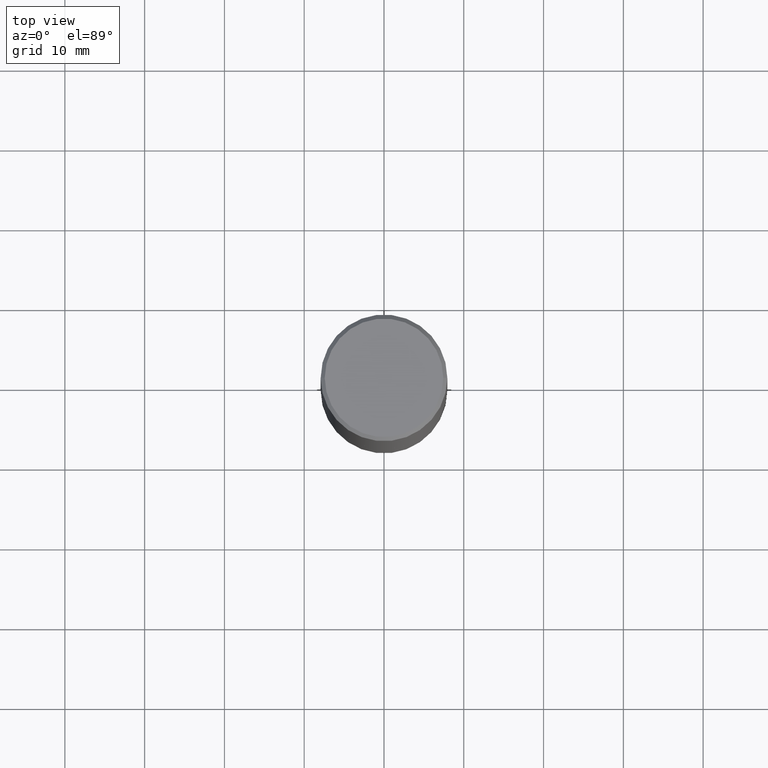
[diagram: clean part render]
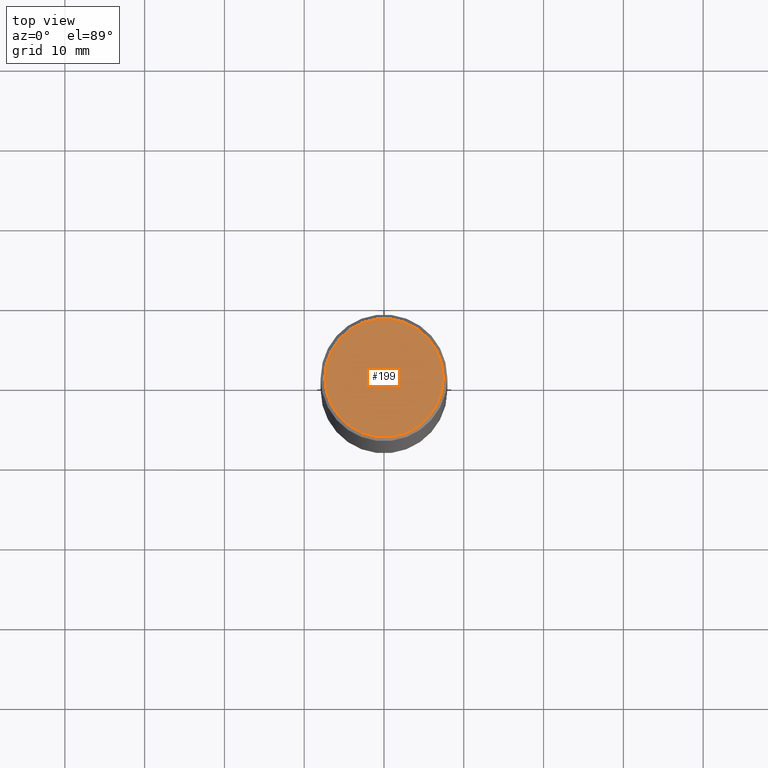
[diagram: same view with one face highlighted and labeled with its STEP entity id]
A machine part, top view. The second image highlights one B-rep face of the part: STEP entity #199.
In plain terms, the highlighted planar face has unit normal (0, -0, -1).
Its self-contained STEP definition (entity closure, byte-faithful):
#29 = PLANE ( 'NONE',  #419 ) ;
#84 = CARTESIAN_POINT ( 'NONE',  ( 2.042516583223231356E-15, 0.2924999999999998157, -1.019124035366569212E-15 ) ) ;
#107 = CARTESIAN_POINT ( 'NONE',  ( 0.2924999999999998157, -2.110215457714318748E-15, 4.268512490114932791E-18 ) ) ;
#108 = VERTEX_POINT ( 'NONE', #294 ) ;
#159 = DIRECTION ( 'NONE',  ( 1.000000000000000000, -6.982962677686266711E-15, 4.876067333457692840E-29 ) ) ;
#171 = DIRECTION ( 'NONE',  ( -2.445468806185136597E-29, 3.491481338843145583E-15, 1.000000000000000000 ) ) ;
#197 = CARTESIAN_POINT ( 'NONE',  ( -1.043851414335219820E-46, 1.490343170380447200E-32, 4.268512490100411279E-18 ) ) ;
#199 = ADVANCED_FACE ( 'NONE', ( #397 ), #29, .F. ) ;
#230 = EDGE_CURVE ( 'NONE', #108, #239, #387, .T. ) ;
#233 = DIRECTION ( 'NONE',  ( 1.000000000000000000, -6.982962677686266711E-15, 4.876067333457692840E-29 ) ) ;
#239 = VERTEX_POINT ( 'NONE', #107 ) ;
#261 = CIRCLE ( 'NONE', #298, 0.2924999999999998157 ) ;
#264 = DIRECTION ( 'NONE',  ( -1.000000000000000000, 6.982962677686265922E-15, -4.876176775795935793E-29 ) ) ;
#294 = CARTESIAN_POINT ( 'NONE',  ( -0.2924999999999998157, 2.077431396611662611E-15, 4.268512490086005323E-18 ) ) ;
#298 = AXIS2_PLACEMENT_3D ( 'NONE', #372, #171, #233 ) ;
#300 = DIRECTION ( 'NONE',  ( 2.438088387897960049E-29, -3.491481338843145188E-15, -1.000000000000000000 ) ) ;
#302 = EDGE_CURVE ( 'NONE', #239, #108, #261, .T. ) ;
#317 = ORIENTED_EDGE ( 'NONE', *, *, #230, .T. ) ;
#334 = DIRECTION ( 'NONE',  ( -2.445468806185136597E-29, 3.491481338843145583E-15, 1.000000000000000000 ) ) ;
#362 = EDGE_LOOP ( 'NONE', ( #317, #411 ) ) ;
#372 = CARTESIAN_POINT ( 'NONE',  ( -1.043851414335219820E-46, 1.490343170380447200E-32, 4.268512490100411279E-18 ) ) ;
#387 = CIRCLE ( 'NONE', #431, 0.2924999999999998157 ) ;
#397 = FACE_OUTER_BOUND ( 'NONE', #362, .T. ) ;
#411 = ORIENTED_EDGE ( 'NONE', *, *, #302, .T. ) ;
#419 = AXIS2_PLACEMENT_3D ( 'NONE', #84, #300, #264 ) ;
#431 = AXIS2_PLACEMENT_3D ( 'NONE', #197, #334, #159 ) ;